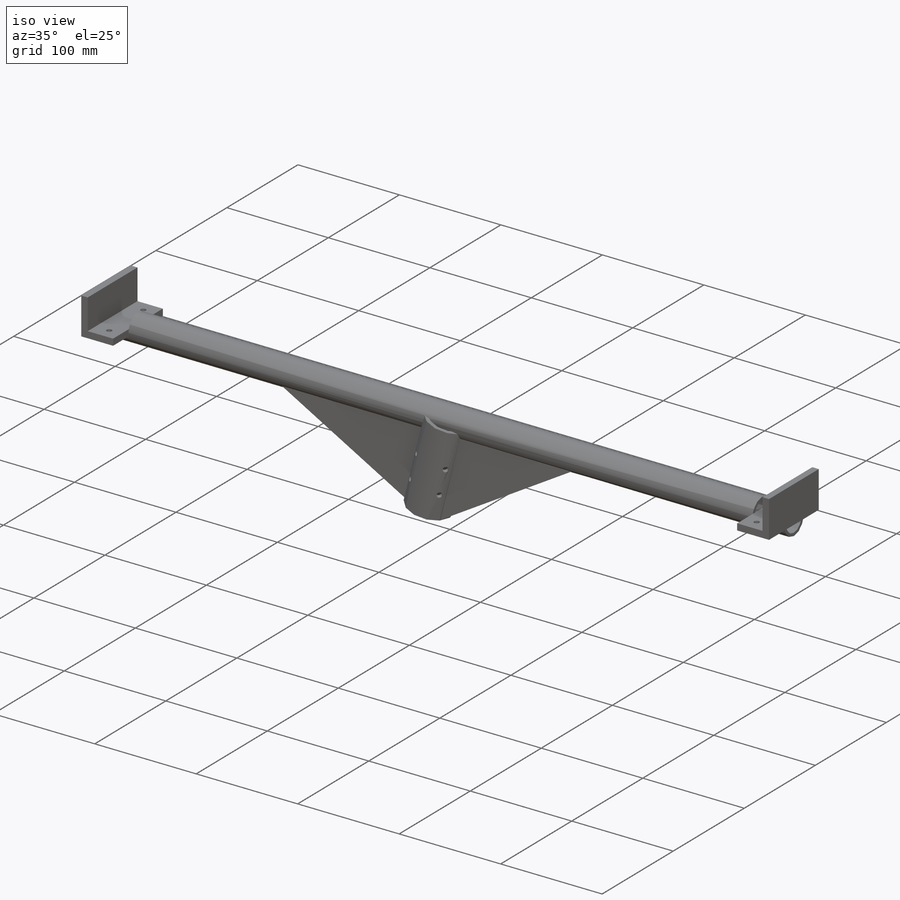
[diagram: iso view]
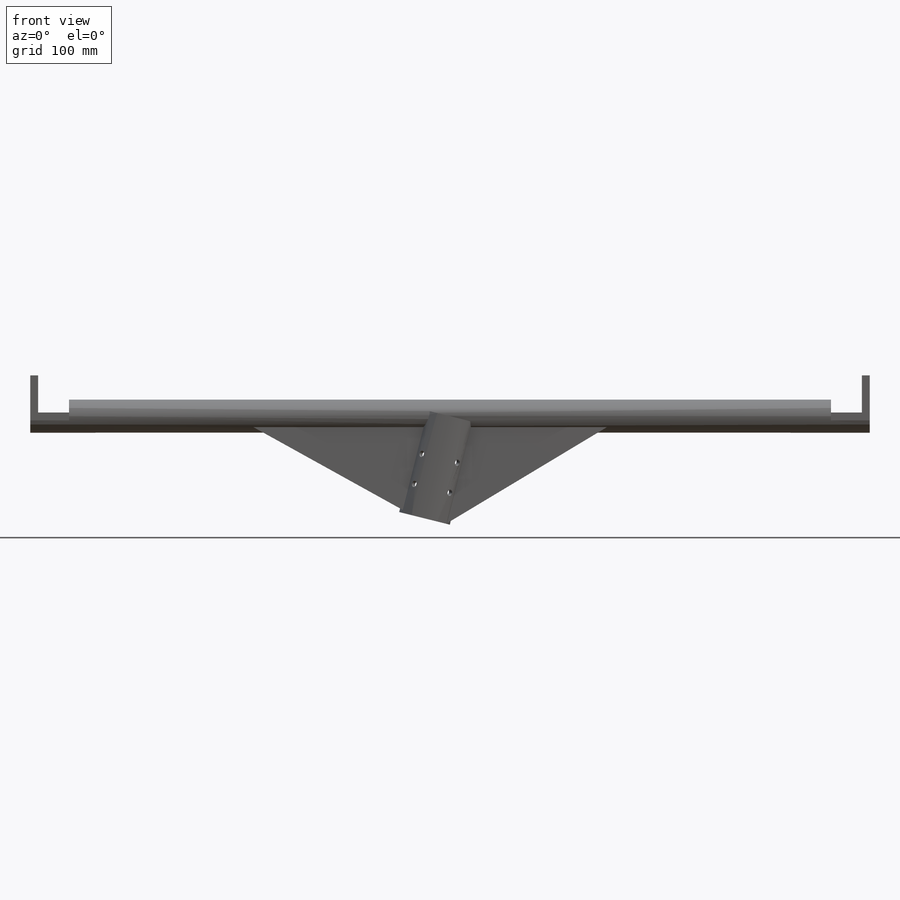
[diagram: front view]
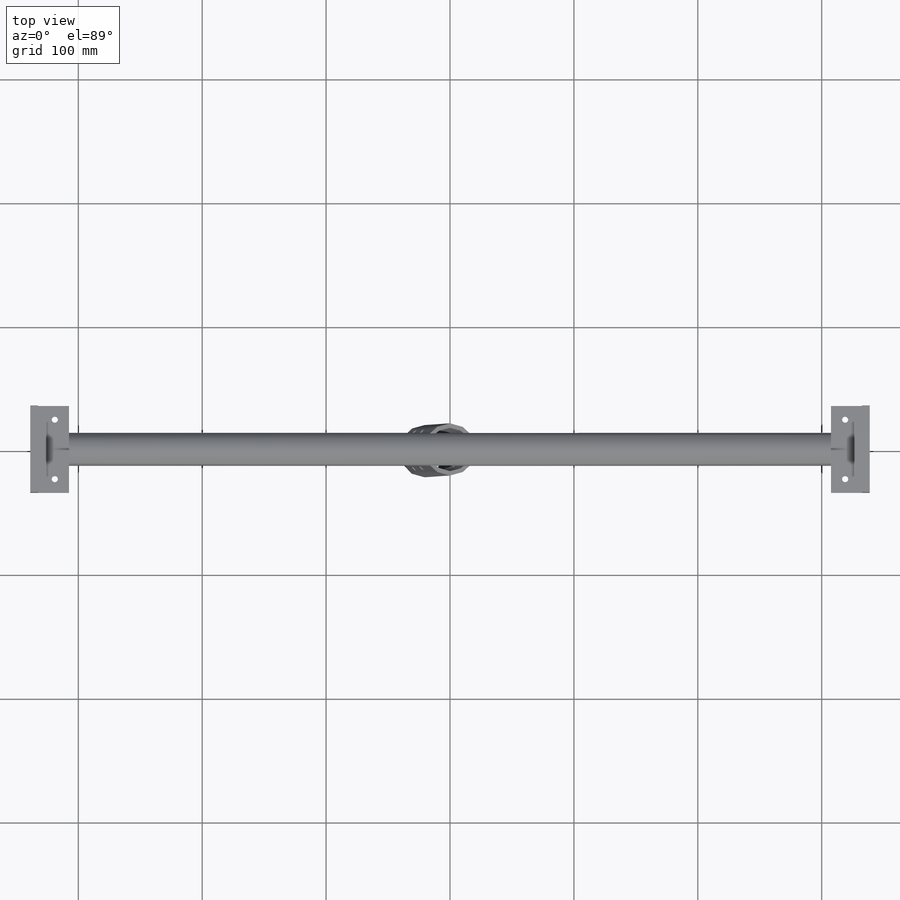
[diagram: top view]
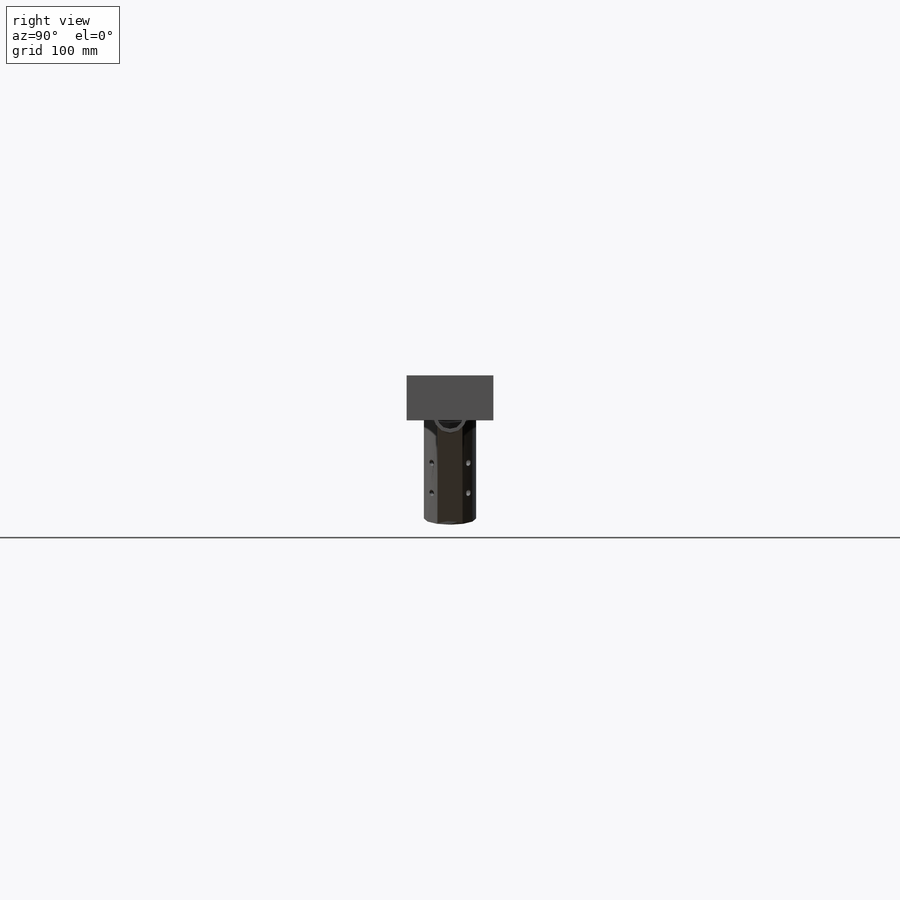
[diagram: right view]
SOLIDWORKS PART (.sldprt)
format: sldprt  version: not decoded by parser v0  size: 562,688 bytes
history: native  units: mm
features: sketch x15, extrude x5, hole x2, plane x2, material x1, cut_extrude x1, mirror x1 (+12 scaffold rows collapsed)
feature tree (39):
  scaffold x12  (default folders/planes/origin — collapsed)
  material  "Alloy Steel"
  sketch  "Sketch1"  dims[D1=26.67mm D2=2.87mm]
  extrude  "Boss-Extrude1"  Depth=338.85mm
  sketch  "Sketch4"  dims[c1.D1=15.0mm c1.D2=20.0mm c1.D3=14.0mm c2.D1=3.0mm]
  cut_extrude  "Cut-Extrude3"  Depth=25mm
  sketch  "Sketch5"  dims[D1=70.0mm]
  extrude  "Boss-Extrude2"  Depth=6.35mm
  sketch  "Sketch6"
  extrude  "Boss-Extrude3"  Depth=6.35mm
  hole  "#8 (0.199) Diameter Hole1"  Diameter=5.0546mm Depth=32.41mm
  sketch  "Sketch8"  dims[D1=48.0mm D2=24.0mm D3=11.5mm]
  sketch  "Sketch7"  dims[hole-wizard template sketch: 47 standard entries collapsed; hole parameters kept: c15.Hole Depth=32.41mm c15.D3=~14.816244mm c15.Drill Angle=180.0deg]
  mirror  "Mirror1"
  sketch  "Sketch9"  dims[D1=76.0deg]
  plane  "Plane1"
  plane  "Plane2"  Offset=13mm
  sketch  "Sketch10"  dims[D1=35.04mm D2=42.164mm]
  extrude  "Boss-Extrude4"  Depth=85mm
  sketch  "Sketch13"  dims[c1.D1=100.0mm c2.D1=45.0deg]
  hole  "#8 (0.199) Diameter Hole2"  Diameter=5.0546mm Depth=50mm
  sketch  "3DSketch4"  dims[c1.D7=42.164mm c1.D1=25.0mm c1.D2=~20.189138mm c1.D3=~15.637309mm c1.D4=32.426mm c2.D2=25.0mm c2.D3=25.0mm c2.D4=25.0mm c2.D5=50.0mm c2.D6=50.0mm c2.D7=50.0mm c2.D8=50.0mm]
  sketch  "Sketch12"  dims[hole-wizard template sketch: 47 standard entries collapsed; hole parameters kept: c15.Hole Depth=50.0mm c15.D3=~14.816244mm c15.Drill Angle=180.0deg]
  sketch  "Sketch17"  dims[c1.D1=~319.782435mm c2.D1=45.0deg c2.D2=~40.911549mm c3.D1=~34.90137mm c4.D1=45.0deg c5.D1=~26.978965mm c6.D1=45.0deg c6.D2=3.0mm c6.D3=~314.462772mm c7.D3=45.0deg c7.D4=5.0mm c7.D1=~54.261747mm c8.D1=45.0deg c9.D1=20.0mm]
  sketch  "Sketch18"  dims[c1.D1=~314.462772mm c2.D1=45.0deg c2.D2=3.0mm c3.D1=~37.598068mm c4.D1=45.0deg c5.D1=~39.782546mm c6.D1=75.0deg]
  sketch  "Rib4"  dims[D1=20.0mm]
  sketch  "Sketch19"  dims[c1.D1=~83.977694mm c2.D1=90.0deg c2.D2=30.0mm]
  extrude  "Boss-Extrude5"  Depth=678mm
decode coverage: 22 of 24 modeling features carry decoded parameters
note: ~ marks probable driven/reference dimensions
note: suppression state not decoded; provenance and decode notes live in map.json
